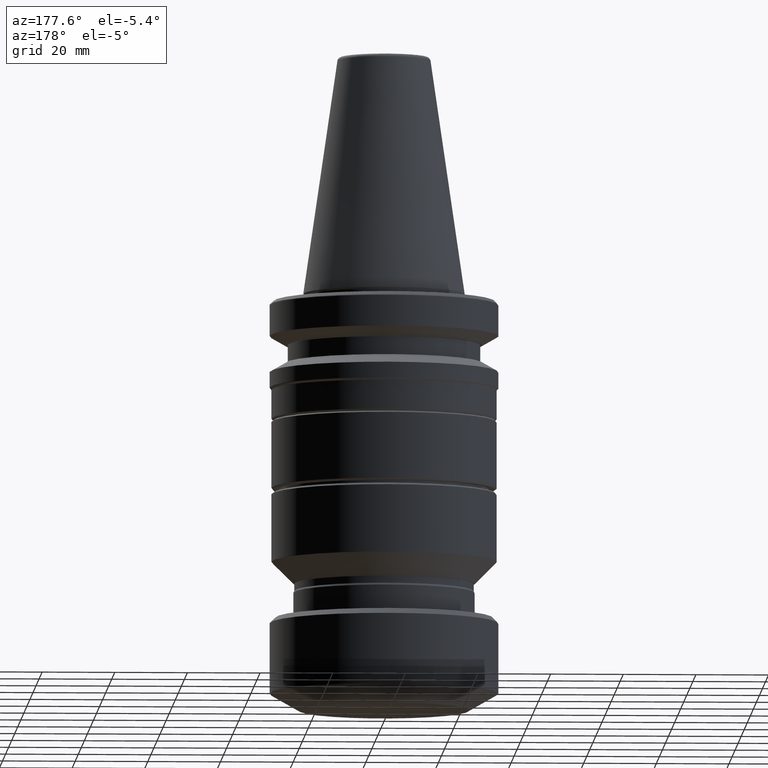
[diagram: clean part render]
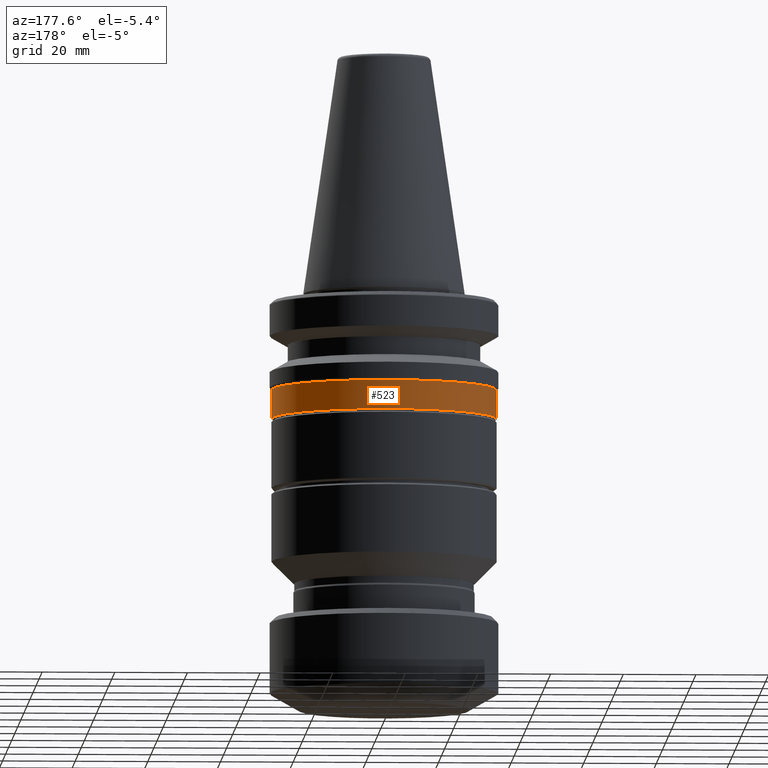
[diagram: same view with one face highlighted and labeled with its STEP entity id]
A machine part, auxiliary view. The second image highlights one B-rep face of the part: STEP entity #523.
In plain terms, the highlighted cylindrical surface (partial cylindrical patch) has radius 31 mm, axis along (-0, -0, 1).
Its self-contained STEP definition (entity closure, byte-faithful):
#11 = EDGE_CURVE ( 'NONE', #319, #1207, #1352, .T. ) ;
#24 = VERTEX_POINT ( 'NONE', #248 ) ;
#68 = CARTESIAN_POINT ( 'NONE',  ( 31.00000000000002800, 0.0000000000000000000, -26.49999999999998900 ) ) ;
#74 = EDGE_LOOP ( 'NONE', ( #143, #463, #1008, #1398 ) ) ;
#119 = CARTESIAN_POINT ( 'NONE',  ( 0.0000000000000000000, 0.0000000000000000000, -26.49999999999998900 ) ) ;
#143 = ORIENTED_EDGE ( 'NONE', *, *, #1799, .T. ) ;
#157 = CARTESIAN_POINT ( 'NONE',  ( -31.00000000000002800, 3.819847432477243700E-015, -26.49999999999998900 ) ) ;
#248 = CARTESIAN_POINT ( 'NONE',  ( -31.00000000000002800, 3.796405077356798300E-015, -34.49999999999997200 ) ) ;
#293 = DIRECTION ( 'NONE',  ( -0.0000000000000000000, -0.0000000000000000000, 1.000000000000000000 ) ) ;
#319 = VERTEX_POINT ( 'NONE', #648 ) ;
#326 = CIRCLE ( 'NONE', #1296, 31.00000000000002800 ) ;
#463 = ORIENTED_EDGE ( 'NONE', *, *, #1521, .T. ) ;
#523 = ADVANCED_FACE ( 'NONE', ( #698 ), #608, .T. ) ;
#525 = CARTESIAN_POINT ( 'NONE',  ( 0.0000000000000000000, 0.0000000000000000000, 107.6183603081325900 ) ) ;
#529 = DIRECTION ( 'NONE',  ( 0.0000000000000000000, 0.0000000000000000000, -1.000000000000000000 ) ) ;
#608 = CYLINDRICAL_SURFACE ( 'NONE', #1842, 31.00000000000002800 ) ;
#648 = CARTESIAN_POINT ( 'NONE',  ( 31.00000000000002800, 0.0000000000000000000, -34.49999999999997200 ) ) ;
#660 = DIRECTION ( 'NONE',  ( 1.000000000000000000, 0.0000000000000000000, 0.0000000000000000000 ) ) ;
#698 = FACE_OUTER_BOUND ( 'NONE', #74, .T. ) ;
#743 = EDGE_CURVE ( 'NONE', #1757, #1207, #326, .T. ) ;
#1008 = ORIENTED_EDGE ( 'NONE', *, *, #743, .T. ) ;
#1085 = LINE ( 'NONE', #1728, #1112 ) ;
#1112 = VECTOR ( 'NONE', #1430, 1000.000000000000000 ) ;
#1207 = VERTEX_POINT ( 'NONE', #68 ) ;
#1211 = CARTESIAN_POINT ( 'NONE',  ( 0.0000000000000000000, 0.0000000000000000000, -34.49999999999997200 ) ) ;
#1285 = VECTOR ( 'NONE', #1453, 1000.000000000000000 ) ;
#1292 = DIRECTION ( 'NONE',  ( -0.0000000000000000000, -0.0000000000000000000, 1.000000000000000000 ) ) ;
#1295 = CARTESIAN_POINT ( 'NONE',  ( 31.00000000000002800, 0.0000000000000000000, 107.6183603081325900 ) ) ;
#1296 = AXIS2_PLACEMENT_3D ( 'NONE', #119, #529, #1743 ) ;
#1343 = DIRECTION ( 'NONE',  ( 1.000000000000000000, 0.0000000000000000000, 0.0000000000000000000 ) ) ;
#1352 = LINE ( 'NONE', #1295, #1285 ) ;
#1398 = ORIENTED_EDGE ( 'NONE', *, *, #11, .F. ) ;
#1430 = DIRECTION ( 'NONE',  ( -0.0000000000000000000, -0.0000000000000000000, 1.000000000000000000 ) ) ;
#1453 = DIRECTION ( 'NONE',  ( -0.0000000000000000000, -0.0000000000000000000, 1.000000000000000000 ) ) ;
#1463 = CIRCLE ( 'NONE', #1602, 31.00000000000002800 ) ;
#1521 = EDGE_CURVE ( 'NONE', #24, #1757, #1085, .T. ) ;
#1602 = AXIS2_PLACEMENT_3D ( 'NONE', #1211, #293, #1343 ) ;
#1728 = CARTESIAN_POINT ( 'NONE',  ( -31.00000000000002800, 3.796405077356798300E-015, 107.6183603081325900 ) ) ;
#1743 = DIRECTION ( 'NONE',  ( 1.000000000000000000, 0.0000000000000000000, 0.0000000000000000000 ) ) ;
#1757 = VERTEX_POINT ( 'NONE', #157 ) ;
#1799 = EDGE_CURVE ( 'NONE', #319, #24, #1463, .T. ) ;
#1842 = AXIS2_PLACEMENT_3D ( 'NONE', #525, #1292, #660 ) ;